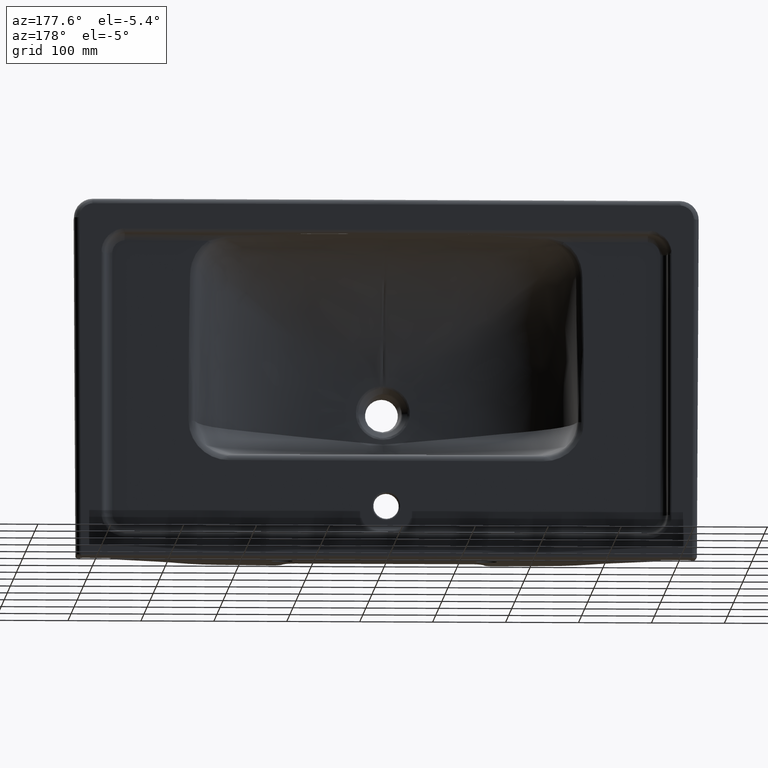
[diagram: clean part render]
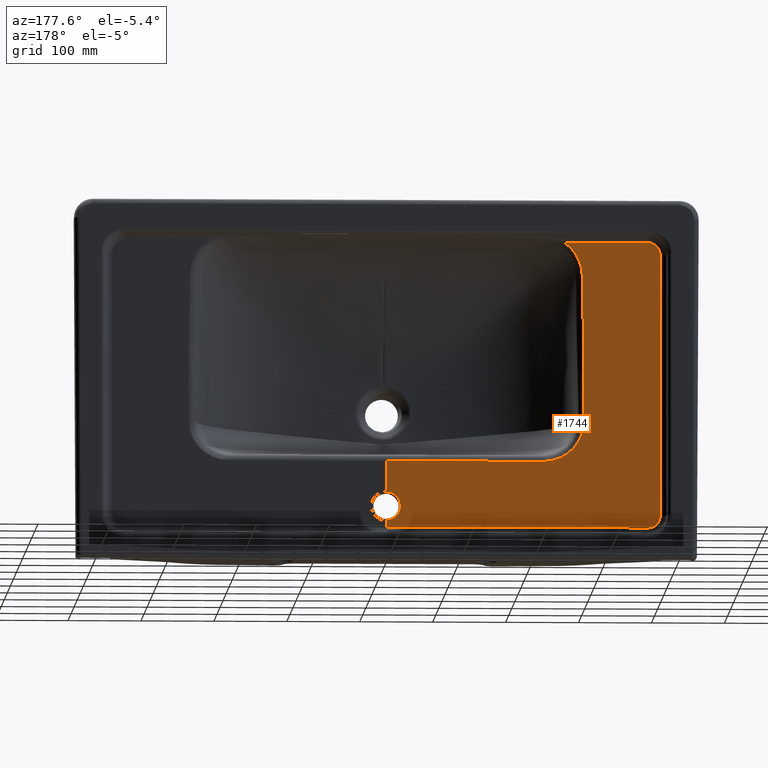
[diagram: same view with one face highlighted and labeled with its STEP entity id]
A machine part, auxiliary view. The second image highlights one B-rep face of the part: STEP entity #1744.
In plain terms, the highlighted planar face has unit normal (0, 1, 0).
Its self-contained STEP definition (entity closure, byte-faithful):
#607=CIRCLE('',#7928,19.5);
#608=CIRCLE('',#7929,17.);
#979=B_SPLINE_CURVE_WITH_KNOTS('',3,(#10154,#10155,#10156,#10157,#10158,
#10159,#10160),.UNSPECIFIED.,.F.,.F.,(4,3,4),(0.,0.488828419280423,1.),
 .UNSPECIFIED.);
#980=B_SPLINE_CURVE_WITH_KNOTS('',3,(#10162,#10163,#10164,#10165,#10166,
#10167,#10168,#10169),.UNSPECIFIED.,.F.,.F.,(4,2,2,4),(0.,0.249999999999999,
0.499999999999999,1.),.UNSPECIFIED.);
#981=B_SPLINE_CURVE_WITH_KNOTS('',3,(#10171,#10172,#10173,#10174,#10175,
#10176,#10177,#10178,#10179,#10180),.UNSPECIFIED.,.F.,.F.,(4,3,3,4),(0.,
0.173982033207614,0.869910166038072,1.),.UNSPECIFIED.);
#982=B_SPLINE_CURVE_WITH_KNOTS('',3,(#10182,#10183,#10184,#10185,#10186,
#10187,#10188,#10189,#10190,#10191,#10192,#10193,#10194,#10195,#10196,#10197,
#10198,#10199,#10200,#10201),.UNSPECIFIED.,.F.,.F.,(4,2,2,2,2,2,2,2,2,4),
(0.,0.0624999999999998,0.0937499999999998,0.125,0.1875,0.21875,0.25,0.375,
0.5,1.),.UNSPECIFIED.);
#983=B_SPLINE_CURVE_WITH_KNOTS('',3,(#10203,#10204,#10205,#10206,#10207,
#10208,#10209,#10210,#10211,#10212,#10213,#10214,#10215,#10216,#10217,#10218),
 .UNSPECIFIED.,.F.,.F.,(4,2,2,2,2,2,2,4),(0.,0.25,0.375,0.5,0.625,0.75,
0.875,1.),.UNSPECIFIED.);
#1744=ADVANCED_FACE('',(#2302),#2275,.T.);
#2275=PLANE('',#7930);
#2302=FACE_OUTER_BOUND('',#2828,.T.);
#2828=EDGE_LOOP('',(#3501,#3502,#3503,#3504,#3505,#3506,#3507,#3508,#3509,
#3510,#3511));
#3501=ORIENTED_EDGE('',*,*,#6605,.T.);
#3502=ORIENTED_EDGE('',*,*,#6614,.T.);
#3503=ORIENTED_EDGE('',*,*,#6603,.T.);
#3504=ORIENTED_EDGE('',*,*,#6615,.T.);
#3505=ORIENTED_EDGE('',*,*,#6616,.T.);
#3506=ORIENTED_EDGE('',*,*,#6617,.T.);
#3507=ORIENTED_EDGE('',*,*,#6618,.T.);
#3508=ORIENTED_EDGE('',*,*,#6619,.T.);
#3509=ORIENTED_EDGE('',*,*,#6620,.T.);
#3510=ORIENTED_EDGE('',*,*,#6621,.T.);
#3511=ORIENTED_EDGE('',*,*,#6622,.T.);
#5904=VERTEX_POINT('',#10071);
#5905=VERTEX_POINT('',#10072);
#5906=VERTEX_POINT('',#10074);
#5907=VERTEX_POINT('',#10076);
#5915=VERTEX_POINT('',#10151);
#5916=VERTEX_POINT('',#10153);
#5917=VERTEX_POINT('',#10161);
#5918=VERTEX_POINT('',#10170);
#5919=VERTEX_POINT('',#10181);
#5920=VERTEX_POINT('',#10202);
#5921=VERTEX_POINT('',#10219);
#6603=EDGE_CURVE('',#5904,#5905,#7752,.T.);
#6605=EDGE_CURVE('',#5907,#5906,#7753,.T.);
#6614=EDGE_CURVE('',#5906,#5904,#607,.T.);
#6615=EDGE_CURVE('',#5905,#5915,#7756,.T.);
#6616=EDGE_CURVE('',#5915,#5916,#608,.T.);
#6617=EDGE_CURVE('',#5916,#5917,#979,.T.);
#6618=EDGE_CURVE('',#5917,#5918,#980,.T.);
#6619=EDGE_CURVE('',#5918,#5919,#981,.T.);
#6620=EDGE_CURVE('',#5919,#5920,#982,.T.);
#6621=EDGE_CURVE('',#5920,#5921,#983,.T.);
#6622=EDGE_CURVE('',#5921,#5907,#7757,.T.);
#7752=LINE('',#10070,#7836);
#7753=LINE('',#10075,#7837);
#7756=LINE('',#10150,#7840);
#7757=LINE('',#10220,#7841);
#7836=VECTOR('',#8386,1.);
#7837=VECTOR('',#8389,1.);
#7840=VECTOR('',#8398,1.);
#7841=VECTOR('',#8401,1.);
#7928=AXIS2_PLACEMENT_3D('',#10149,#8396,#8397);
#7929=AXIS2_PLACEMENT_3D('',#10152,#8399,#8400);
#7930=AXIS2_PLACEMENT_3D('',#10221,#8402,#8403);
#8386=DIRECTION('',(0.,0.,-1.));
#8389=DIRECTION('',(0.,0.,-1.));
#8396=DIRECTION('',(0.,-1.,0.));
#8397=DIRECTION('',(0.,0.,0.999999999999999));
#8398=DIRECTION('',(-1.,0.,0.));
#8399=DIRECTION('',(0.,1.,0.));
#8400=DIRECTION('',(0.,0.,1.));
#8401=DIRECTION('',(1.,0.,-1.0707705283783E-018));
#8402=DIRECTION('',(0.,1.,0.));
#8403=DIRECTION('',(0.,0.,1.));
#10070=CARTESIAN_POINT('',(-4.,-29.1168494463141,-270.68459482305));
#10071=CARTESIAN_POINT('',(-4.,-29.1168494463141,-186.319183778549));
#10072=CARTESIAN_POINT('',(-4.,-29.1168494463141,-195.68459482305));
#10074=CARTESIAN_POINT('',(-4.,-29.1168494463141,-147.319183778549));
#10075=CARTESIAN_POINT('',(-4.,-29.1168494463141,-270.68459482305));
#10076=CARTESIAN_POINT('',(-4.,-29.1168494463141,-104.597708202375));
#10149=CARTESIAN_POINT('',(-4.,-29.1168494463141,-166.819183778549));
#10150=CARTESIAN_POINT('',(-4.,-29.1168494463141,-195.68459482305));
#10151=CARTESIAN_POINT('',(-362.598225316961,-29.1168494463141,-195.68459482305));
#10152=CARTESIAN_POINT('',(-362.598225316961,-29.1168494463141,-178.684594823051));
#10153=CARTESIAN_POINT('',(-379.598874677878,-29.1168494322487,-178.687350839631));
#10154=CARTESIAN_POINT('',(-379.599524279501,-29.1168494463141,-178.687246091307));
#10155=CARTESIAN_POINT('',(-379.608622648946,-29.1168494463141,-120.343810376227));
#10156=CARTESIAN_POINT('',(-379.610168036991,-29.1168494463141,-62.0003736188182));
#10157=CARTESIAN_POINT('',(-379.611123511241,-29.1168494463141,-3.6569372021398));
#10158=CARTESIAN_POINT('',(-379.612122657904,-29.1168494463141,57.3532362706168));
#10159=CARTESIAN_POINT('',(-379.611805841716,-29.1168494463141,118.363409758464));
#10160=CARTESIAN_POINT('',(-379.611805854897,-29.1168494463141,179.373583239402));
#10161=CARTESIAN_POINT('',(-379.611805854897,-29.1168494463141,179.373583239402));
#10162=CARTESIAN_POINT('',(-379.611805854897,-29.1168494463141,179.373583239402));
#10163=CARTESIAN_POINT('',(-379.611805855392,-29.1168494463141,181.669692296067));
#10164=CARTESIAN_POINT('',(-379.193227324863,-29.1168494463141,183.918043485965));
#10165=CARTESIAN_POINT('',(-377.542845019446,-29.1168494463141,188.178181041233));
#10166=CARTESIAN_POINT('',(-376.32377390507,-29.1168494463141,190.135582571956));
#10167=CARTESIAN_POINT('',(-371.664533368968,-29.1168494463141,195.121609512111));
#10168=CARTESIAN_POINT('',(-367.210237210118,-29.1168494463141,197.150343747395));
#10169=CARTESIAN_POINT('',(-362.611803578279,-29.1168494463141,197.150343103348));
#10170=CARTESIAN_POINT('',(-362.611803578279,-29.1168494463141,197.150343103348));
#10171=CARTESIAN_POINT('',(-362.611803578279,-29.1168494463141,197.150343103348));
#10172=CARTESIAN_POINT('',(-355.945136911612,-29.1168494463141,197.150342169629));
#10173=CARTESIAN_POINT('',(-349.278470244946,-29.1168494463141,197.150341235905));
#10174=CARTESIAN_POINT('',(-342.611803578279,-29.1168494463141,197.150340302175));
#10175=CARTESIAN_POINT('',(-315.945136911613,-29.1168494463141,197.150336567254));
#10176=CARTESIAN_POINT('',(-289.278470244946,-29.1168494463141,197.150332832239));
#10177=CARTESIAN_POINT('',(-262.61180357828,-29.1168494463141,197.150329097061));
#10178=CARTESIAN_POINT('',(-257.627004034575,-29.1168494463141,197.150328398844));
#10179=CARTESIAN_POINT('',(-252.64220449087,-29.1168494463141,197.150327700622));
#10180=CARTESIAN_POINT('',(-247.657404947165,-29.1168494463141,197.150327002393));
#10181=CARTESIAN_POINT('',(-247.657404947165,-29.1168494463141,197.150327002393));
#10182=CARTESIAN_POINT('',(-247.657404947165,-29.116849446314,197.150327002393));
#10183=CARTESIAN_POINT('',(-252.198993862629,-29.1168494463141,194.201439899744));
#10184=CARTESIAN_POINT('',(-256.238854205781,-29.1168494463141,190.644363906063));
#10185=CARTESIAN_POINT('',(-261.426169018883,-29.1168494463141,184.510715879622));
#10186=CARTESIAN_POINT('',(-263.026533924848,-29.1168494463141,182.307230628682));
#10187=CARTESIAN_POINT('',(-265.845668889303,-29.1168494463141,177.736138556918));
#10188=CARTESIAN_POINT('',(-267.073328735197,-29.116849446314,175.364190306603));
#10189=CARTESIAN_POINT('',(-270.242940623209,-29.1168494463141,168.004506964576));
#10190=CARTESIAN_POINT('',(-271.658581121936,-29.1168494463139,162.717460358311));
#10191=CARTESIAN_POINT('',(-272.692491193268,-29.1168494463139,154.803161826837));
#10192=CARTESIAN_POINT('',(-272.846424921194,-29.1168494463143,152.147765303446));
#10193=CARTESIAN_POINT('',(-273.068273967549,-29.1168494463143,146.829170272264));
#10194=CARTESIAN_POINT('',(-273.163634911868,-29.1168494463141,144.168461119325));
#10195=CARTESIAN_POINT('',(-273.536349964021,-29.1168494463141,130.855474282863));
#10196=CARTESIAN_POINT('',(-273.606298752937,-29.1168494463142,120.188613271256));
#10197=CARTESIAN_POINT('',(-273.924742809917,-29.1168494463142,98.868552365905));
#10198=CARTESIAN_POINT('',(-274.128619595299,-29.1168494463142,88.2092029732213));
#10199=CARTESIAN_POINT('',(-275.000937331322,-29.1168494463142,34.9103731177732));
#10200=CARTESIAN_POINT('',(-275.255336882416,-29.1168494463141,-7.73550095258585));
#10201=CARTESIAN_POINT('',(-275.012085118657,-29.1168494463141,-50.3801051524352));
#10202=CARTESIAN_POINT('',(-275.012085118657,-29.1168494463141,-50.3801051524352));
#10203=CARTESIAN_POINT('',(-275.012087892108,-29.1168494463141,-50.3801051682554));
#10204=CARTESIAN_POINT('',(-274.971057358915,-29.1168494463141,-57.570170760826));
#10205=CARTESIAN_POINT('',(-273.465146323814,-29.1168494463146,-64.7013578230284));
#10206=CARTESIAN_POINT('',(-269.303365564353,-29.1168494463146,-74.4819331722205));
#10207=CARTESIAN_POINT('',(-267.578780822968,-29.1168494463143,-77.6400510310102));
#10208=CARTESIAN_POINT('',(-263.553177393673,-29.1168494463144,-83.5446097832931));
#10209=CARTESIAN_POINT('',(-261.279483874704,-29.1168494463143,-86.264216994831));
#10210=CARTESIAN_POINT('',(-256.222601349241,-29.1168494463143,-91.2490460521171));
#10211=CARTESIAN_POINT('',(-253.407819420814,-29.1168494463144,-93.5296293577274));
#10212=CARTESIAN_POINT('',(-247.475343217792,-29.1168494463144,-97.4475181963257));
#10213=CARTESIAN_POINT('',(-244.34360144959,-29.1168494463145,-99.1075389317147));
#10214=CARTESIAN_POINT('',(-237.745396743482,-29.1168494463145,-101.823025306334));
#10215=CARTESIAN_POINT('',(-234.290796264427,-29.1168494463138,-102.864094301216));
#10216=CARTESIAN_POINT('',(-227.336887066924,-29.1168494463138,-104.243225856186));
#10217=CARTESIAN_POINT('',(-223.802590619664,-29.1168494463141,-104.597644542432));
#10218=CARTESIAN_POINT('',(-220.207665948996,-29.1168494463141,-104.597708193896));
#10219=CARTESIAN_POINT('',(-220.207665948996,-29.1168494463141,-104.597708193896));
#10220=CARTESIAN_POINT('',(3.33066907387547E-013,-29.1168494463141,-104.597708202375));
#10221=CARTESIAN_POINT('',(661.189391889384,-29.1168494463141,-270.68459482305));